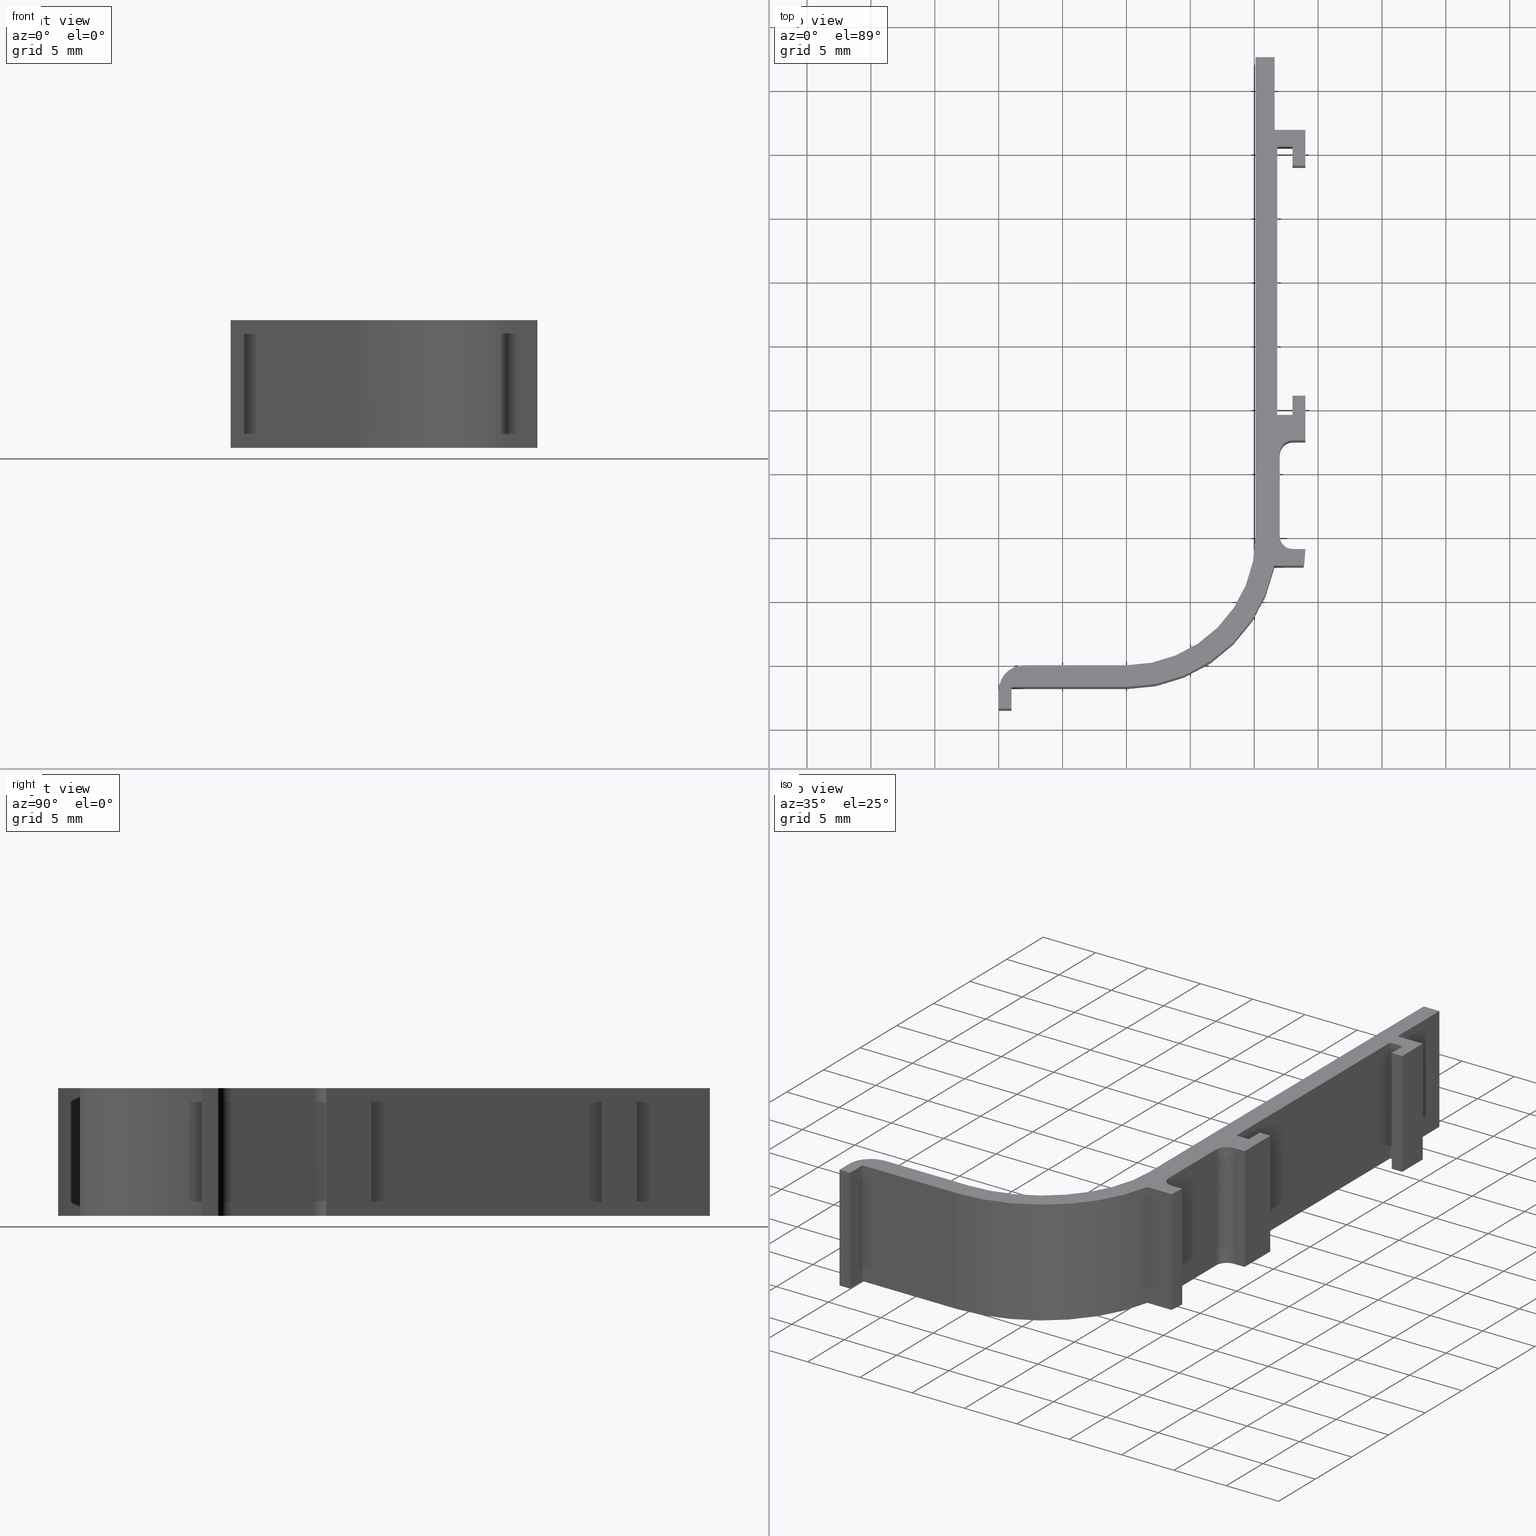
[diagram: canonical four-view strip — front | top / right | iso, engineering-drawing reading convention]
A machine part, canonical four-view strip (front | top / right | iso — engineering-drawing reading convention). The complete STEP part file that produces these views, byte-faithful:
ISO-10303-21;
HEADER;
/* Generated by software containing ST-Developer
 * from STEP Tools, Inc. (www.steptools.com) 
 */

FILE_DESCRIPTION(
/* description */ ('Griffmulde L-Form'),
/* implementation_level */ '2;1');

FILE_NAME(
/* name */ 'C:\\Users\\selema\\Desktop\\901014.stp',
/* time_stamp */ '2020-08-24T10:30:35+02:00',
/* author */ ('selema'),
/* organization */ (''),
/* preprocessor_version */ 'ST-DEVELOPER v15.6',
/* originating_system */ 'Autodesk Inventor 2015',
/* authorisation */ '');

FILE_SCHEMA (('AUTOMOTIVE_DESIGN { 1 0 10303 214 3 1 1 }'));
ENDSEC;

DATA;
#10=MECHANICAL_DESIGN_GEOMETRIC_PRESENTATION_REPRESENTATION('',(#13),#975);
#11=SHAPE_REPRESENTATION_RELATIONSHIP('SRR','None',#984,#12);
#12=ADVANCED_BREP_SHAPE_REPRESENTATION($,(#14),#974);
#13=STYLED_ITEM('',(#993),#14);
#14=MANIFOLD_SOLID_BREP('Volumenk\X\F6rper1',#599);
#15=CYLINDRICAL_SURFACE('',#609,12.);
#16=CYLINDRICAL_SURFACE('',#612,2.);
#17=CYLINDRICAL_SURFACE('',#620,1.);
#18=CYLINDRICAL_SURFACE('',#622,1.);
#19=CYLINDRICAL_SURFACE('',#624,10.1);
#20=CYLINDRICAL_SURFACE('',#639,11.8);
#21=CIRCLE('',#603,11.8);
#22=CIRCLE('',#604,12.);
#23=CIRCLE('',#605,1.);
#24=CIRCLE('',#606,1.);
#25=CIRCLE('',#607,10.1);
#26=CIRCLE('',#608,2.);
#27=CIRCLE('',#610,12.);
#28=CIRCLE('',#613,2.);
#29=CIRCLE('',#615,11.8);
#30=CIRCLE('',#616,10.1);
#31=CIRCLE('',#617,1.);
#32=CIRCLE('',#618,1.);
#33=FACE_OUTER_BOUND('',#63,.T.);
#34=FACE_OUTER_BOUND('',#64,.T.);
#35=FACE_OUTER_BOUND('',#65,.T.);
#36=FACE_OUTER_BOUND('',#66,.T.);
#37=FACE_OUTER_BOUND('',#67,.T.);
#38=FACE_OUTER_BOUND('',#68,.T.);
#39=FACE_OUTER_BOUND('',#69,.T.);
#40=FACE_OUTER_BOUND('',#70,.T.);
#41=FACE_OUTER_BOUND('',#71,.T.);
#42=FACE_OUTER_BOUND('',#72,.T.);
#43=FACE_OUTER_BOUND('',#73,.T.);
#44=FACE_OUTER_BOUND('',#74,.T.);
#45=FACE_OUTER_BOUND('',#75,.T.);
#46=FACE_OUTER_BOUND('',#76,.T.);
#47=FACE_OUTER_BOUND('',#77,.T.);
#48=FACE_OUTER_BOUND('',#78,.T.);
#49=FACE_OUTER_BOUND('',#79,.T.);
#50=FACE_OUTER_BOUND('',#80,.T.);
#51=FACE_OUTER_BOUND('',#81,.T.);
#52=FACE_OUTER_BOUND('',#82,.T.);
#53=FACE_OUTER_BOUND('',#83,.T.);
#54=FACE_OUTER_BOUND('',#84,.T.);
#55=FACE_OUTER_BOUND('',#85,.T.);
#56=FACE_OUTER_BOUND('',#86,.T.);
#57=FACE_OUTER_BOUND('',#87,.T.);
#58=FACE_OUTER_BOUND('',#88,.T.);
#59=FACE_OUTER_BOUND('',#89,.T.);
#60=FACE_OUTER_BOUND('',#90,.T.);
#61=FACE_OUTER_BOUND('',#91,.T.);
#62=FACE_OUTER_BOUND('',#92,.T.);
#63=EDGE_LOOP('',(#377,#378,#379,#380));
#64=EDGE_LOOP('',(#381,#382,#383,#384,#385,#386,#387,#388,#389,#390,#391,
#392,#393,#394,#395,#396,#397,#398,#399,#400,#401,#402,#403,#404,#405,#406,
#407,#408));
#65=EDGE_LOOP('',(#409,#410,#411,#412));
#66=EDGE_LOOP('',(#413,#414,#415,#416));
#67=EDGE_LOOP('',(#417,#418,#419,#420));
#68=EDGE_LOOP('',(#421,#422,#423,#424,#425,#426,#427,#428,#429,#430,#431,
#432,#433,#434,#435,#436,#437,#438,#439,#440,#441,#442,#443,#444,#445,#446,
#447,#448));
#69=EDGE_LOOP('',(#449,#450,#451,#452));
#70=EDGE_LOOP('',(#453,#454,#455,#456));
#71=EDGE_LOOP('',(#457,#458,#459,#460));
#72=EDGE_LOOP('',(#461,#462,#463,#464));
#73=EDGE_LOOP('',(#465,#466,#467,#468));
#74=EDGE_LOOP('',(#469,#470,#471,#472));
#75=EDGE_LOOP('',(#473,#474,#475,#476));
#76=EDGE_LOOP('',(#477,#478,#479,#480));
#77=EDGE_LOOP('',(#481,#482,#483,#484));
#78=EDGE_LOOP('',(#485,#486,#487,#488));
#79=EDGE_LOOP('',(#489,#490,#491,#492));
#80=EDGE_LOOP('',(#493,#494,#495,#496));
#81=EDGE_LOOP('',(#497,#498,#499,#500));
#82=EDGE_LOOP('',(#501,#502,#503,#504));
#83=EDGE_LOOP('',(#505,#506,#507,#508));
#84=EDGE_LOOP('',(#509,#510,#511,#512));
#85=EDGE_LOOP('',(#513,#514,#515,#516));
#86=EDGE_LOOP('',(#517,#518,#519,#520));
#87=EDGE_LOOP('',(#521,#522,#523,#524));
#88=EDGE_LOOP('',(#525,#526,#527,#528));
#89=EDGE_LOOP('',(#529,#530,#531,#532));
#90=EDGE_LOOP('',(#533,#534,#535,#536));
#91=EDGE_LOOP('',(#537,#538,#539,#540));
#92=EDGE_LOOP('',(#541,#542,#543,#544));
#93=LINE('',#805,#165);
#94=LINE('',#807,#166);
#95=LINE('',#809,#167);
#96=LINE('',#810,#168);
#97=LINE('',#817,#169);
#98=LINE('',#821,#170);
#99=LINE('',#825,#171);
#100=LINE('',#827,#172);
#101=LINE('',#829,#173);
#102=LINE('',#831,#174);
#103=LINE('',#833,#175);
#104=LINE('',#835,#176);
#105=LINE('',#837,#177);
#106=LINE('',#839,#178);
#107=LINE('',#841,#179);
#108=LINE('',#843,#180);
#109=LINE('',#845,#181);
#110=LINE('',#847,#182);
#111=LINE('',#849,#183);
#112=LINE('',#851,#184);
#113=LINE('',#855,#185);
#114=LINE('',#859,#186);
#115=LINE('',#861,#187);
#116=LINE('',#863,#188);
#117=LINE('',#864,#189);
#118=LINE('',#868,#190);
#119=LINE('',#872,#191);
#120=LINE('',#873,#192);
#121=LINE('',#874,#193);
#122=LINE('',#879,#194);
#123=LINE('',#880,#195);
#124=LINE('',#885,#196);
#125=LINE('',#887,#197);
#126=LINE('',#889,#198);
#127=LINE('',#890,#199);
#128=LINE('',#892,#200);
#129=LINE('',#896,#201);
#130=LINE('',#897,#202);
#131=LINE('',#899,#203);
#132=LINE('',#901,#204);
#133=LINE('',#903,#205);
#134=LINE('',#905,#206);
#135=LINE('',#907,#207);
#136=LINE('',#909,#208);
#137=LINE('',#911,#209);
#138=LINE('',#913,#210);
#139=LINE('',#915,#211);
#140=LINE('',#917,#212);
#141=LINE('',#919,#213);
#142=LINE('',#923,#214);
#143=LINE('',#926,#215);
#144=LINE('',#928,#216);
#145=LINE('',#930,#217);
#146=LINE('',#931,#218);
#147=LINE('',#933,#219);
#148=LINE('',#935,#220);
#149=LINE('',#937,#221);
#150=LINE('',#939,#222);
#151=LINE('',#941,#223);
#152=LINE('',#943,#224);
#153=LINE('',#946,#225);
#154=LINE('',#948,#226);
#155=LINE('',#950,#227);
#156=LINE('',#952,#228);
#157=LINE('',#954,#229);
#158=LINE('',#956,#230);
#159=LINE('',#958,#231);
#160=LINE('',#960,#232);
#161=LINE('',#962,#233);
#162=LINE('',#966,#234);
#163=LINE('',#968,#235);
#164=LINE('',#970,#236);
#165=VECTOR('',#647,2.29055492974429);
#166=VECTOR('',#648,10.);
#167=VECTOR('',#649,2.29055492974429);
#168=VECTOR('',#650,10.);
#169=VECTOR('',#657,0.989578808281794);
#170=VECTOR('',#660,6.5);
#171=VECTOR('',#663,0.999999999999999);
#172=VECTOR('',#664,3.5);
#173=VECTOR('',#665,1.);
#174=VECTOR('',#666,1.5);
#175=VECTOR('',#667,1.2);
#176=VECTOR('',#668,21.);
#177=VECTOR('',#669,1.2);
#178=VECTOR('',#670,1.49999999999999);
#179=VECTOR('',#671,1.);
#180=VECTOR('',#672,2.79999999999999);
#181=VECTOR('',#673,2.4);
#182=VECTOR('',#674,5.69999999999999);
#183=VECTOR('',#675,1.5);
#184=VECTOR('',#676,37.5);
#185=VECTOR('',#679,8.00000000000001);
#186=VECTOR('',#682,1.40000000000001);
#187=VECTOR('',#683,0.999999999999999);
#188=VECTOR('',#684,1.70000000000001);
#189=VECTOR('',#685,9.00000000000001);
#190=VECTOR('',#690,10.);
#191=VECTOR('',#693,5.69999999999999);
#192=VECTOR('',#694,10.);
#193=VECTOR('',#695,10.);
#194=VECTOR('',#700,10.);
#195=VECTOR('',#701,10.);
#196=VECTOR('',#706,9.00000000000001);
#197=VECTOR('',#707,1.70000000000001);
#198=VECTOR('',#708,0.999999999999999);
#199=VECTOR('',#709,1.40000000000001);
#200=VECTOR('',#710,8.00000000000001);
#201=VECTOR('',#713,37.5);
#202=VECTOR('',#714,1.5);
#203=VECTOR('',#715,2.4);
#204=VECTOR('',#716,2.79999999999999);
#205=VECTOR('',#717,1.);
#206=VECTOR('',#718,1.49999999999999);
#207=VECTOR('',#719,1.2);
#208=VECTOR('',#720,21.);
#209=VECTOR('',#721,1.2);
#210=VECTOR('',#722,1.5);
#211=VECTOR('',#723,1.);
#212=VECTOR('',#724,3.5);
#213=VECTOR('',#725,0.999999999999999);
#214=VECTOR('',#728,6.5);
#215=VECTOR('',#731,0.989578808281794);
#216=VECTOR('',#734,10.);
#217=VECTOR('',#737,10.);
#218=VECTOR('',#738,10.);
#219=VECTOR('',#741,10.);
#220=VECTOR('',#744,10.);
#221=VECTOR('',#747,10.);
#222=VECTOR('',#750,10.);
#223=VECTOR('',#753,10.);
#224=VECTOR('',#756,10.);
#225=VECTOR('',#761,10.);
#226=VECTOR('',#764,10.);
#227=VECTOR('',#767,10.);
#228=VECTOR('',#770,10.);
#229=VECTOR('',#773,10.);
#230=VECTOR('',#776,10.);
#231=VECTOR('',#779,10.);
#232=VECTOR('',#782,10.);
#233=VECTOR('',#785,10.);
#234=VECTOR('',#792,10.);
#235=VECTOR('',#795,10.);
#236=VECTOR('',#798,10.);
#237=VERTEX_POINT('',#803);
#238=VERTEX_POINT('',#804);
#239=VERTEX_POINT('',#806);
#240=VERTEX_POINT('',#808);
#241=VERTEX_POINT('',#812);
#242=VERTEX_POINT('',#814);
#243=VERTEX_POINT('',#816);
#244=VERTEX_POINT('',#818);
#245=VERTEX_POINT('',#820);
#246=VERTEX_POINT('',#822);
#247=VERTEX_POINT('',#824);
#248=VERTEX_POINT('',#826);
#249=VERTEX_POINT('',#828);
#250=VERTEX_POINT('',#830);
#251=VERTEX_POINT('',#832);
#252=VERTEX_POINT('',#834);
#253=VERTEX_POINT('',#836);
#254=VERTEX_POINT('',#838);
#255=VERTEX_POINT('',#840);
#256=VERTEX_POINT('',#842);
#257=VERTEX_POINT('',#844);
#258=VERTEX_POINT('',#846);
#259=VERTEX_POINT('',#848);
#260=VERTEX_POINT('',#850);
#261=VERTEX_POINT('',#852);
#262=VERTEX_POINT('',#854);
#263=VERTEX_POINT('',#856);
#264=VERTEX_POINT('',#858);
#265=VERTEX_POINT('',#860);
#266=VERTEX_POINT('',#862);
#267=VERTEX_POINT('',#866);
#268=VERTEX_POINT('',#870);
#269=VERTEX_POINT('',#871);
#270=VERTEX_POINT('',#876);
#271=VERTEX_POINT('',#877);
#272=VERTEX_POINT('',#882);
#273=VERTEX_POINT('',#884);
#274=VERTEX_POINT('',#886);
#275=VERTEX_POINT('',#888);
#276=VERTEX_POINT('',#891);
#277=VERTEX_POINT('',#893);
#278=VERTEX_POINT('',#895);
#279=VERTEX_POINT('',#898);
#280=VERTEX_POINT('',#900);
#281=VERTEX_POINT('',#902);
#282=VERTEX_POINT('',#904);
#283=VERTEX_POINT('',#906);
#284=VERTEX_POINT('',#908);
#285=VERTEX_POINT('',#910);
#286=VERTEX_POINT('',#912);
#287=VERTEX_POINT('',#914);
#288=VERTEX_POINT('',#916);
#289=VERTEX_POINT('',#918);
#290=VERTEX_POINT('',#920);
#291=VERTEX_POINT('',#922);
#292=VERTEX_POINT('',#924);
#293=EDGE_CURVE('',#237,#238,#93,.T.);
#294=EDGE_CURVE('',#239,#237,#94,.T.);
#295=EDGE_CURVE('',#240,#239,#95,.T.);
#296=EDGE_CURVE('',#240,#238,#96,.T.);
#297=EDGE_CURVE('',#240,#241,#21,.T.);
#298=EDGE_CURVE('',#242,#239,#22,.T.);
#299=EDGE_CURVE('',#243,#242,#97,.T.);
#300=EDGE_CURVE('',#244,#243,#23,.T.);
#301=EDGE_CURVE('',#245,#244,#98,.T.);
#302=EDGE_CURVE('',#246,#245,#24,.T.);
#303=EDGE_CURVE('',#247,#246,#99,.T.);
#304=EDGE_CURVE('',#248,#247,#100,.T.);
#305=EDGE_CURVE('',#249,#248,#101,.T.);
#306=EDGE_CURVE('',#250,#249,#102,.T.);
#307=EDGE_CURVE('',#251,#250,#103,.T.);
#308=EDGE_CURVE('',#252,#251,#104,.T.);
#309=EDGE_CURVE('',#253,#252,#105,.T.);
#310=EDGE_CURVE('',#254,#253,#106,.T.);
#311=EDGE_CURVE('',#255,#254,#107,.T.);
#312=EDGE_CURVE('',#256,#255,#108,.T.);
#313=EDGE_CURVE('',#257,#256,#109,.T.);
#314=EDGE_CURVE('',#257,#258,#110,.T.);
#315=EDGE_CURVE('',#259,#258,#111,.T.);
#316=EDGE_CURVE('',#259,#260,#112,.T.);
#317=EDGE_CURVE('',#260,#261,#25,.T.);
#318=EDGE_CURVE('',#261,#262,#113,.T.);
#319=EDGE_CURVE('',#263,#262,#26,.T.);
#320=EDGE_CURVE('',#264,#263,#114,.T.);
#321=EDGE_CURVE('',#265,#264,#115,.T.);
#322=EDGE_CURVE('',#266,#265,#116,.T.);
#323=EDGE_CURVE('',#241,#266,#117,.T.);
#324=EDGE_CURVE('',#237,#267,#27,.T.);
#325=EDGE_CURVE('',#267,#242,#118,.T.);
#326=EDGE_CURVE('',#268,#269,#119,.T.);
#327=EDGE_CURVE('',#258,#268,#120,.T.);
#328=EDGE_CURVE('',#257,#269,#121,.T.);
#329=EDGE_CURVE('',#270,#271,#28,.T.);
#330=EDGE_CURVE('',#271,#263,#122,.T.);
#331=EDGE_CURVE('',#262,#270,#123,.T.);
#332=EDGE_CURVE('',#238,#272,#29,.T.);
#333=EDGE_CURVE('',#273,#272,#124,.T.);
#334=EDGE_CURVE('',#274,#273,#125,.T.);
#335=EDGE_CURVE('',#275,#274,#126,.T.);
#336=EDGE_CURVE('',#271,#275,#127,.T.);
#337=EDGE_CURVE('',#270,#276,#128,.T.);
#338=EDGE_CURVE('',#276,#277,#30,.T.);
#339=EDGE_CURVE('',#277,#278,#129,.T.);
#340=EDGE_CURVE('',#268,#278,#130,.T.);
#341=EDGE_CURVE('',#269,#279,#131,.T.);
#342=EDGE_CURVE('',#280,#279,#132,.T.);
#343=EDGE_CURVE('',#281,#280,#133,.T.);
#344=EDGE_CURVE('',#282,#281,#134,.T.);
#345=EDGE_CURVE('',#283,#282,#135,.T.);
#346=EDGE_CURVE('',#284,#283,#136,.T.);
#347=EDGE_CURVE('',#285,#284,#137,.T.);
#348=EDGE_CURVE('',#286,#285,#138,.T.);
#349=EDGE_CURVE('',#287,#286,#139,.T.);
#350=EDGE_CURVE('',#288,#287,#140,.T.);
#351=EDGE_CURVE('',#289,#288,#141,.T.);
#352=EDGE_CURVE('',#290,#289,#31,.T.);
#353=EDGE_CURVE('',#291,#290,#142,.T.);
#354=EDGE_CURVE('',#292,#291,#32,.T.);
#355=EDGE_CURVE('',#267,#292,#143,.T.);
#356=EDGE_CURVE('',#261,#276,#144,.T.);
#357=EDGE_CURVE('',#291,#244,#145,.T.);
#358=EDGE_CURVE('',#243,#292,#146,.T.);
#359=EDGE_CURVE('',#245,#290,#147,.T.);
#360=EDGE_CURVE('',#289,#246,#148,.T.);
#361=EDGE_CURVE('',#288,#247,#149,.T.);
#362=EDGE_CURVE('',#260,#277,#150,.T.);
#363=EDGE_CURVE('',#278,#259,#151,.T.);
#364=EDGE_CURVE('',#275,#264,#152,.T.);
#365=EDGE_CURVE('',#279,#256,#153,.T.);
#366=EDGE_CURVE('',#280,#255,#154,.T.);
#367=EDGE_CURVE('',#281,#254,#155,.T.);
#368=EDGE_CURVE('',#282,#253,#156,.T.);
#369=EDGE_CURVE('',#283,#252,#157,.T.);
#370=EDGE_CURVE('',#284,#251,#158,.T.);
#371=EDGE_CURVE('',#285,#250,#159,.T.);
#372=EDGE_CURVE('',#286,#249,#160,.T.);
#373=EDGE_CURVE('',#287,#248,#161,.T.);
#374=EDGE_CURVE('',#272,#241,#162,.T.);
#375=EDGE_CURVE('',#273,#266,#163,.T.);
#376=EDGE_CURVE('',#274,#265,#164,.T.);
#377=ORIENTED_EDGE('',*,*,#293,.F.);
#378=ORIENTED_EDGE('',*,*,#294,.F.);
#379=ORIENTED_EDGE('',*,*,#295,.F.);
#380=ORIENTED_EDGE('',*,*,#296,.T.);
#381=ORIENTED_EDGE('',*,*,#297,.F.);
#382=ORIENTED_EDGE('',*,*,#295,.T.);
#383=ORIENTED_EDGE('',*,*,#298,.F.);
#384=ORIENTED_EDGE('',*,*,#299,.F.);
#385=ORIENTED_EDGE('',*,*,#300,.F.);
#386=ORIENTED_EDGE('',*,*,#301,.F.);
#387=ORIENTED_EDGE('',*,*,#302,.F.);
#388=ORIENTED_EDGE('',*,*,#303,.F.);
#389=ORIENTED_EDGE('',*,*,#304,.F.);
#390=ORIENTED_EDGE('',*,*,#305,.F.);
#391=ORIENTED_EDGE('',*,*,#306,.F.);
#392=ORIENTED_EDGE('',*,*,#307,.F.);
#393=ORIENTED_EDGE('',*,*,#308,.F.);
#394=ORIENTED_EDGE('',*,*,#309,.F.);
#395=ORIENTED_EDGE('',*,*,#310,.F.);
#396=ORIENTED_EDGE('',*,*,#311,.F.);
#397=ORIENTED_EDGE('',*,*,#312,.F.);
#398=ORIENTED_EDGE('',*,*,#313,.F.);
#399=ORIENTED_EDGE('',*,*,#314,.T.);
#400=ORIENTED_EDGE('',*,*,#315,.F.);
#401=ORIENTED_EDGE('',*,*,#316,.T.);
#402=ORIENTED_EDGE('',*,*,#317,.T.);
#403=ORIENTED_EDGE('',*,*,#318,.T.);
#404=ORIENTED_EDGE('',*,*,#319,.F.);
#405=ORIENTED_EDGE('',*,*,#320,.F.);
#406=ORIENTED_EDGE('',*,*,#321,.F.);
#407=ORIENTED_EDGE('',*,*,#322,.F.);
#408=ORIENTED_EDGE('',*,*,#323,.F.);
#409=ORIENTED_EDGE('',*,*,#294,.T.);
#410=ORIENTED_EDGE('',*,*,#324,.T.);
#411=ORIENTED_EDGE('',*,*,#325,.T.);
#412=ORIENTED_EDGE('',*,*,#298,.T.);
#413=ORIENTED_EDGE('',*,*,#326,.F.);
#414=ORIENTED_EDGE('',*,*,#327,.F.);
#415=ORIENTED_EDGE('',*,*,#314,.F.);
#416=ORIENTED_EDGE('',*,*,#328,.T.);
#417=ORIENTED_EDGE('',*,*,#329,.T.);
#418=ORIENTED_EDGE('',*,*,#330,.T.);
#419=ORIENTED_EDGE('',*,*,#319,.T.);
#420=ORIENTED_EDGE('',*,*,#331,.T.);
#421=ORIENTED_EDGE('',*,*,#332,.T.);
#422=ORIENTED_EDGE('',*,*,#333,.F.);
#423=ORIENTED_EDGE('',*,*,#334,.F.);
#424=ORIENTED_EDGE('',*,*,#335,.F.);
#425=ORIENTED_EDGE('',*,*,#336,.F.);
#426=ORIENTED_EDGE('',*,*,#329,.F.);
#427=ORIENTED_EDGE('',*,*,#337,.T.);
#428=ORIENTED_EDGE('',*,*,#338,.T.);
#429=ORIENTED_EDGE('',*,*,#339,.T.);
#430=ORIENTED_EDGE('',*,*,#340,.F.);
#431=ORIENTED_EDGE('',*,*,#326,.T.);
#432=ORIENTED_EDGE('',*,*,#341,.T.);
#433=ORIENTED_EDGE('',*,*,#342,.F.);
#434=ORIENTED_EDGE('',*,*,#343,.F.);
#435=ORIENTED_EDGE('',*,*,#344,.F.);
#436=ORIENTED_EDGE('',*,*,#345,.F.);
#437=ORIENTED_EDGE('',*,*,#346,.F.);
#438=ORIENTED_EDGE('',*,*,#347,.F.);
#439=ORIENTED_EDGE('',*,*,#348,.F.);
#440=ORIENTED_EDGE('',*,*,#349,.F.);
#441=ORIENTED_EDGE('',*,*,#350,.F.);
#442=ORIENTED_EDGE('',*,*,#351,.F.);
#443=ORIENTED_EDGE('',*,*,#352,.F.);
#444=ORIENTED_EDGE('',*,*,#353,.F.);
#445=ORIENTED_EDGE('',*,*,#354,.F.);
#446=ORIENTED_EDGE('',*,*,#355,.F.);
#447=ORIENTED_EDGE('',*,*,#324,.F.);
#448=ORIENTED_EDGE('',*,*,#293,.T.);
#449=ORIENTED_EDGE('',*,*,#331,.F.);
#450=ORIENTED_EDGE('',*,*,#318,.F.);
#451=ORIENTED_EDGE('',*,*,#356,.T.);
#452=ORIENTED_EDGE('',*,*,#337,.F.);
#453=ORIENTED_EDGE('',*,*,#354,.T.);
#454=ORIENTED_EDGE('',*,*,#357,.T.);
#455=ORIENTED_EDGE('',*,*,#300,.T.);
#456=ORIENTED_EDGE('',*,*,#358,.T.);
#457=ORIENTED_EDGE('',*,*,#357,.F.);
#458=ORIENTED_EDGE('',*,*,#353,.T.);
#459=ORIENTED_EDGE('',*,*,#359,.F.);
#460=ORIENTED_EDGE('',*,*,#301,.T.);
#461=ORIENTED_EDGE('',*,*,#352,.T.);
#462=ORIENTED_EDGE('',*,*,#360,.T.);
#463=ORIENTED_EDGE('',*,*,#302,.T.);
#464=ORIENTED_EDGE('',*,*,#359,.T.);
#465=ORIENTED_EDGE('',*,*,#360,.F.);
#466=ORIENTED_EDGE('',*,*,#351,.T.);
#467=ORIENTED_EDGE('',*,*,#361,.T.);
#468=ORIENTED_EDGE('',*,*,#303,.T.);
#469=ORIENTED_EDGE('',*,*,#338,.F.);
#470=ORIENTED_EDGE('',*,*,#356,.F.);
#471=ORIENTED_EDGE('',*,*,#317,.F.);
#472=ORIENTED_EDGE('',*,*,#362,.T.);
#473=ORIENTED_EDGE('',*,*,#339,.F.);
#474=ORIENTED_EDGE('',*,*,#362,.F.);
#475=ORIENTED_EDGE('',*,*,#316,.F.);
#476=ORIENTED_EDGE('',*,*,#363,.F.);
#477=ORIENTED_EDGE('',*,*,#330,.F.);
#478=ORIENTED_EDGE('',*,*,#336,.T.);
#479=ORIENTED_EDGE('',*,*,#364,.T.);
#480=ORIENTED_EDGE('',*,*,#320,.T.);
#481=ORIENTED_EDGE('',*,*,#327,.T.);
#482=ORIENTED_EDGE('',*,*,#340,.T.);
#483=ORIENTED_EDGE('',*,*,#363,.T.);
#484=ORIENTED_EDGE('',*,*,#315,.T.);
#485=ORIENTED_EDGE('',*,*,#313,.T.);
#486=ORIENTED_EDGE('',*,*,#365,.F.);
#487=ORIENTED_EDGE('',*,*,#341,.F.);
#488=ORIENTED_EDGE('',*,*,#328,.F.);
#489=ORIENTED_EDGE('',*,*,#312,.T.);
#490=ORIENTED_EDGE('',*,*,#366,.F.);
#491=ORIENTED_EDGE('',*,*,#342,.T.);
#492=ORIENTED_EDGE('',*,*,#365,.T.);
#493=ORIENTED_EDGE('',*,*,#311,.T.);
#494=ORIENTED_EDGE('',*,*,#367,.F.);
#495=ORIENTED_EDGE('',*,*,#343,.T.);
#496=ORIENTED_EDGE('',*,*,#366,.T.);
#497=ORIENTED_EDGE('',*,*,#310,.T.);
#498=ORIENTED_EDGE('',*,*,#368,.F.);
#499=ORIENTED_EDGE('',*,*,#344,.T.);
#500=ORIENTED_EDGE('',*,*,#367,.T.);
#501=ORIENTED_EDGE('',*,*,#309,.T.);
#502=ORIENTED_EDGE('',*,*,#369,.F.);
#503=ORIENTED_EDGE('',*,*,#345,.T.);
#504=ORIENTED_EDGE('',*,*,#368,.T.);
#505=ORIENTED_EDGE('',*,*,#308,.T.);
#506=ORIENTED_EDGE('',*,*,#370,.F.);
#507=ORIENTED_EDGE('',*,*,#346,.T.);
#508=ORIENTED_EDGE('',*,*,#369,.T.);
#509=ORIENTED_EDGE('',*,*,#307,.T.);
#510=ORIENTED_EDGE('',*,*,#371,.F.);
#511=ORIENTED_EDGE('',*,*,#347,.T.);
#512=ORIENTED_EDGE('',*,*,#370,.T.);
#513=ORIENTED_EDGE('',*,*,#306,.T.);
#514=ORIENTED_EDGE('',*,*,#372,.F.);
#515=ORIENTED_EDGE('',*,*,#348,.T.);
#516=ORIENTED_EDGE('',*,*,#371,.T.);
#517=ORIENTED_EDGE('',*,*,#305,.T.);
#518=ORIENTED_EDGE('',*,*,#373,.F.);
#519=ORIENTED_EDGE('',*,*,#349,.T.);
#520=ORIENTED_EDGE('',*,*,#372,.T.);
#521=ORIENTED_EDGE('',*,*,#304,.T.);
#522=ORIENTED_EDGE('',*,*,#361,.F.);
#523=ORIENTED_EDGE('',*,*,#350,.T.);
#524=ORIENTED_EDGE('',*,*,#373,.T.);
#525=ORIENTED_EDGE('',*,*,#358,.F.);
#526=ORIENTED_EDGE('',*,*,#299,.T.);
#527=ORIENTED_EDGE('',*,*,#325,.F.);
#528=ORIENTED_EDGE('',*,*,#355,.T.);
#529=ORIENTED_EDGE('',*,*,#297,.T.);
#530=ORIENTED_EDGE('',*,*,#374,.F.);
#531=ORIENTED_EDGE('',*,*,#332,.F.);
#532=ORIENTED_EDGE('',*,*,#296,.F.);
#533=ORIENTED_EDGE('',*,*,#323,.T.);
#534=ORIENTED_EDGE('',*,*,#375,.F.);
#535=ORIENTED_EDGE('',*,*,#333,.T.);
#536=ORIENTED_EDGE('',*,*,#374,.T.);
#537=ORIENTED_EDGE('',*,*,#322,.T.);
#538=ORIENTED_EDGE('',*,*,#376,.F.);
#539=ORIENTED_EDGE('',*,*,#334,.T.);
#540=ORIENTED_EDGE('',*,*,#375,.T.);
#541=ORIENTED_EDGE('',*,*,#321,.T.);
#542=ORIENTED_EDGE('',*,*,#364,.F.);
#543=ORIENTED_EDGE('',*,*,#335,.T.);
#544=ORIENTED_EDGE('',*,*,#376,.T.);
#545=PLANE('',#601);
#546=PLANE('',#602);
#547=PLANE('',#611);
#548=PLANE('',#614);
#549=PLANE('',#619);
#550=PLANE('',#621);
#551=PLANE('',#623);
#552=PLANE('',#625);
#553=PLANE('',#626);
#554=PLANE('',#627);
#555=PLANE('',#628);
#556=PLANE('',#629);
#557=PLANE('',#630);
#558=PLANE('',#631);
#559=PLANE('',#632);
#560=PLANE('',#633);
#561=PLANE('',#634);
#562=PLANE('',#635);
#563=PLANE('',#636);
#564=PLANE('',#637);
#565=PLANE('',#638);
#566=PLANE('',#640);
#567=PLANE('',#641);
#568=PLANE('',#642);
#569=ADVANCED_FACE('',(#33),#545,.F.);
#570=ADVANCED_FACE('',(#34),#546,.T.);
#571=ADVANCED_FACE('',(#35),#15,.T.);
#572=ADVANCED_FACE('',(#36),#547,.F.);
#573=ADVANCED_FACE('',(#37),#16,.T.);
#574=ADVANCED_FACE('',(#38),#548,.F.);
#575=ADVANCED_FACE('',(#39),#549,.F.);
#576=ADVANCED_FACE('',(#40),#17,.F.);
#577=ADVANCED_FACE('',(#41),#550,.T.);
#578=ADVANCED_FACE('',(#42),#18,.F.);
#579=ADVANCED_FACE('',(#43),#551,.T.);
#580=ADVANCED_FACE('',(#44),#19,.F.);
#581=ADVANCED_FACE('',(#45),#552,.F.);
#582=ADVANCED_FACE('',(#46),#553,.T.);
#583=ADVANCED_FACE('',(#47),#554,.T.);
#584=ADVANCED_FACE('',(#48),#555,.T.);
#585=ADVANCED_FACE('',(#49),#556,.T.);
#586=ADVANCED_FACE('',(#50),#557,.T.);
#587=ADVANCED_FACE('',(#51),#558,.T.);
#588=ADVANCED_FACE('',(#52),#559,.T.);
#589=ADVANCED_FACE('',(#53),#560,.T.);
#590=ADVANCED_FACE('',(#54),#561,.T.);
#591=ADVANCED_FACE('',(#55),#562,.T.);
#592=ADVANCED_FACE('',(#56),#563,.T.);
#593=ADVANCED_FACE('',(#57),#564,.T.);
#594=ADVANCED_FACE('',(#58),#565,.T.);
#595=ADVANCED_FACE('',(#59),#20,.T.);
#596=ADVANCED_FACE('',(#60),#566,.T.);
#597=ADVANCED_FACE('',(#61),#567,.T.);
#598=ADVANCED_FACE('',(#62),#568,.T.);
#599=CLOSED_SHELL('',(#569,#570,#571,#572,#573,#574,#575,#576,#577,#578,
#579,#580,#581,#582,#583,#584,#585,#586,#587,#588,#589,#590,#591,#592,#593,
#594,#595,#596,#597,#598));
#600=AXIS2_PLACEMENT_3D('placement',#801,#643,#644);
#601=AXIS2_PLACEMENT_3D('',#802,#645,#646);
#602=AXIS2_PLACEMENT_3D('',#811,#651,#652);
#603=AXIS2_PLACEMENT_3D('',#813,#653,#654);
#604=AXIS2_PLACEMENT_3D('',#815,#655,#656);
#605=AXIS2_PLACEMENT_3D('',#819,#658,#659);
#606=AXIS2_PLACEMENT_3D('',#823,#661,#662);
#607=AXIS2_PLACEMENT_3D('',#853,#677,#678);
#608=AXIS2_PLACEMENT_3D('',#857,#680,#681);
#609=AXIS2_PLACEMENT_3D('',#865,#686,#687);
#610=AXIS2_PLACEMENT_3D('',#867,#688,#689);
#611=AXIS2_PLACEMENT_3D('',#869,#691,#692);
#612=AXIS2_PLACEMENT_3D('',#875,#696,#697);
#613=AXIS2_PLACEMENT_3D('',#878,#698,#699);
#614=AXIS2_PLACEMENT_3D('',#881,#702,#703);
#615=AXIS2_PLACEMENT_3D('',#883,#704,#705);
#616=AXIS2_PLACEMENT_3D('',#894,#711,#712);
#617=AXIS2_PLACEMENT_3D('',#921,#726,#727);
#618=AXIS2_PLACEMENT_3D('',#925,#729,#730);
#619=AXIS2_PLACEMENT_3D('',#927,#732,#733);
#620=AXIS2_PLACEMENT_3D('',#929,#735,#736);
#621=AXIS2_PLACEMENT_3D('',#932,#739,#740);
#622=AXIS2_PLACEMENT_3D('',#934,#742,#743);
#623=AXIS2_PLACEMENT_3D('',#936,#745,#746);
#624=AXIS2_PLACEMENT_3D('',#938,#748,#749);
#625=AXIS2_PLACEMENT_3D('',#940,#751,#752);
#626=AXIS2_PLACEMENT_3D('',#942,#754,#755);
#627=AXIS2_PLACEMENT_3D('',#944,#757,#758);
#628=AXIS2_PLACEMENT_3D('',#945,#759,#760);
#629=AXIS2_PLACEMENT_3D('',#947,#762,#763);
#630=AXIS2_PLACEMENT_3D('',#949,#765,#766);
#631=AXIS2_PLACEMENT_3D('',#951,#768,#769);
#632=AXIS2_PLACEMENT_3D('',#953,#771,#772);
#633=AXIS2_PLACEMENT_3D('',#955,#774,#775);
#634=AXIS2_PLACEMENT_3D('',#957,#777,#778);
#635=AXIS2_PLACEMENT_3D('',#959,#780,#781);
#636=AXIS2_PLACEMENT_3D('',#961,#783,#784);
#637=AXIS2_PLACEMENT_3D('',#963,#786,#787);
#638=AXIS2_PLACEMENT_3D('',#964,#788,#789);
#639=AXIS2_PLACEMENT_3D('',#965,#790,#791);
#640=AXIS2_PLACEMENT_3D('',#967,#793,#794);
#641=AXIS2_PLACEMENT_3D('',#969,#796,#797);
#642=AXIS2_PLACEMENT_3D('',#971,#799,#800);
#643=DIRECTION('axis',(0.,0.,1.));
#644=DIRECTION('refdir',(1.,0.,0.));
#645=DIRECTION('center_axis',(-9.69392185455338E-16,1.,0.));
#646=DIRECTION('ref_axis',(0.,0.,1.));
#647=DIRECTION('',(-1.,-9.69392185455338E-16,0.));
#648=DIRECTION('',(0.,0.,-1.));
#649=DIRECTION('',(1.,9.69392185455338E-16,0.));
#650=DIRECTION('',(0.,0.,-1.));
#651=DIRECTION('center_axis',(0.,0.,1.));
#652=DIRECTION('ref_axis',(1.,0.,0.));
#653=DIRECTION('center_axis',(0.,0.,-1.));
#654=DIRECTION('ref_axis',(1.88173394004264E-16,-1.,0.));
#655=DIRECTION('center_axis',(0.,0.,-1.));
#656=DIRECTION('ref_axis',(0.98601329718327,-0.166666666666664,0.));
#657=DIRECTION('',(1.,1.11603824890349E-15,0.));
#658=DIRECTION('center_axis',(0.,0.,1.));
#659=DIRECTION('ref_axis',(-0.707106781186547,-0.707106781186548,0.));
#660=DIRECTION('',(4.89804275569922E-16,-1.,0.));
#661=DIRECTION('center_axis',(0.,0.,1.));
#662=DIRECTION('ref_axis',(-0.707106781186547,0.707106781186548,0.));
#663=DIRECTION('',(-1.,0.,0.));
#664=DIRECTION('',(3.1720657846433E-16,-1.,0.));
#665=DIRECTION('',(1.,0.,0.));
#666=DIRECTION('',(-1.11022302462515E-15,1.,0.));
#667=DIRECTION('',(1.,0.,0.));
#668=DIRECTION('',(5.55111512312578E-16,-1.,0.));
#669=DIRECTION('',(-1.,0.,0.));
#670=DIRECTION('',(0.,1.,0.));
#671=DIRECTION('',(-1.,0.,0.));
#672=DIRECTION('',(-3.96508223080414E-15,-1.,0.));
#673=DIRECTION('',(1.,0.,0.));
#674=DIRECTION('',(-1.94775969232484E-16,1.,0.));
#675=DIRECTION('',(1.,0.,0.));
#676=DIRECTION('',(9.48315500200654E-17,-1.,0.));
#677=DIRECTION('center_axis',(0.,0.,-1.));
#678=DIRECTION('ref_axis',(-3.29769215235195E-16,1.,0.));
#679=DIRECTION('',(-1.,-3.12250225675825E-16,0.));
#680=DIRECTION('center_axis',(0.,0.,-1.));
#681=DIRECTION('ref_axis',(-0.707106781186548,0.707106781186547,0.));
#682=DIRECTION('',(0.,1.,0.));
#683=DIRECTION('',(-1.,0.,0.));
#684=DIRECTION('',(0.,-1.,0.));
#685=DIRECTION('',(-1.,-8.67361737988401E-17,0.));
#686=DIRECTION('center_axis',(0.,0.,1.));
#687=DIRECTION('ref_axis',(0.98601329718327,-0.166666666666664,0.));
#688=DIRECTION('center_axis',(0.,0.,1.));
#689=DIRECTION('ref_axis',(0.98601329718327,-0.166666666666664,0.));
#690=DIRECTION('',(0.,0.,1.));
#691=DIRECTION('center_axis',(-1.,-1.94775969232484E-16,0.));
#692=DIRECTION('ref_axis',(0.,0.,1.));
#693=DIRECTION('',(1.94775969232484E-16,-1.,0.));
#694=DIRECTION('',(0.,0.,-1.));
#695=DIRECTION('',(0.,0.,-1.));
#696=DIRECTION('center_axis',(0.,0.,-1.));
#697=DIRECTION('ref_axis',(-0.707106781186548,0.707106781186547,0.));
#698=DIRECTION('center_axis',(0.,0.,1.));
#699=DIRECTION('ref_axis',(-0.707106781186548,0.707106781186547,0.));
#700=DIRECTION('',(0.,0.,1.));
#701=DIRECTION('',(0.,0.,-1.));
#702=DIRECTION('center_axis',(0.,0.,1.));
#703=DIRECTION('ref_axis',(1.,0.,0.));
#704=DIRECTION('center_axis',(0.,0.,-1.));
#705=DIRECTION('ref_axis',(-0.97729907046917,0.211864406779659,0.));
#706=DIRECTION('',(1.,0.,0.));
#707=DIRECTION('',(0.,1.,0.));
#708=DIRECTION('',(1.,0.,0.));
#709=DIRECTION('',(0.,-1.,0.));
#710=DIRECTION('',(1.,3.12250225675825E-16,0.));
#711=DIRECTION('center_axis',(0.,0.,1.));
#712=DIRECTION('ref_axis',(-3.29769215235195E-16,1.,0.));
#713=DIRECTION('',(-9.48315500200654E-17,1.,0.));
#714=DIRECTION('',(-1.,0.,0.));
#715=DIRECTION('',(1.,0.,0.));
#716=DIRECTION('',(3.96508223080414E-15,1.,0.));
#717=DIRECTION('',(1.,0.,0.));
#718=DIRECTION('',(0.,-1.,0.));
#719=DIRECTION('',(1.,0.,0.));
#720=DIRECTION('',(-5.55111512312578E-16,1.,0.));
#721=DIRECTION('',(-1.,0.,0.));
#722=DIRECTION('',(1.11022302462515E-15,-1.,0.));
#723=DIRECTION('',(-1.,0.,0.));
#724=DIRECTION('',(-3.1720657846433E-16,1.,0.));
#725=DIRECTION('',(1.,0.,0.));
#726=DIRECTION('center_axis',(0.,0.,-1.));
#727=DIRECTION('ref_axis',(-0.707106781186547,0.707106781186548,0.));
#728=DIRECTION('',(-4.89804275569922E-16,1.,0.));
#729=DIRECTION('center_axis',(0.,0.,-1.));
#730=DIRECTION('ref_axis',(-0.707106781186547,-0.707106781186548,0.));
#731=DIRECTION('',(-1.,-1.11603824890349E-15,0.));
#732=DIRECTION('center_axis',(3.12250225675825E-16,-1.,0.));
#733=DIRECTION('ref_axis',(0.,0.,-1.));
#734=DIRECTION('',(0.,0.,-1.));
#735=DIRECTION('center_axis',(0.,0.,1.));
#736=DIRECTION('ref_axis',(-0.707106781186547,-0.707106781186548,0.));
#737=DIRECTION('',(0.,0.,1.));
#738=DIRECTION('',(0.,0.,-1.));
#739=DIRECTION('center_axis',(1.,4.89804275569922E-16,0.));
#740=DIRECTION('ref_axis',(0.,0.,-1.));
#741=DIRECTION('',(0.,0.,-1.));
#742=DIRECTION('center_axis',(0.,0.,1.));
#743=DIRECTION('ref_axis',(-0.707106781186547,0.707106781186548,0.));
#744=DIRECTION('',(0.,0.,1.));
#745=DIRECTION('center_axis',(0.,-1.,0.));
#746=DIRECTION('ref_axis',(0.,0.,-1.));
#747=DIRECTION('',(0.,0.,1.));
#748=DIRECTION('center_axis',(0.,0.,-1.));
#749=DIRECTION('ref_axis',(-3.29769215235195E-16,1.,0.));
#750=DIRECTION('',(0.,0.,-1.));
#751=DIRECTION('center_axis',(1.,9.48315500200654E-17,0.));
#752=DIRECTION('ref_axis',(0.,0.,-1.));
#753=DIRECTION('',(0.,0.,1.));
#754=DIRECTION('center_axis',(-1.,0.,0.));
#755=DIRECTION('ref_axis',(0.,0.,1.));
#756=DIRECTION('',(0.,0.,1.));
#757=DIRECTION('center_axis',(0.,1.,0.));
#758=DIRECTION('ref_axis',(0.,0.,1.));
#759=DIRECTION('center_axis',(0.,1.,0.));
#760=DIRECTION('ref_axis',(0.,0.,1.));
#761=DIRECTION('',(0.,0.,1.));
#762=DIRECTION('center_axis',(1.,-3.96508223080414E-15,0.));
#763=DIRECTION('ref_axis',(0.,0.,-1.));
#764=DIRECTION('',(0.,0.,1.));
#765=DIRECTION('center_axis',(0.,-1.,0.));
#766=DIRECTION('ref_axis',(0.,0.,-1.));
#767=DIRECTION('',(0.,0.,1.));
#768=DIRECTION('center_axis',(-1.,0.,0.));
#769=DIRECTION('ref_axis',(0.,0.,1.));
#770=DIRECTION('',(0.,0.,1.));
#771=DIRECTION('center_axis',(0.,-1.,0.));
#772=DIRECTION('ref_axis',(0.,0.,-1.));
#773=DIRECTION('',(0.,0.,1.));
#774=DIRECTION('center_axis',(1.,5.55111512312578E-16,0.));
#775=DIRECTION('ref_axis',(0.,0.,-1.));
#776=DIRECTION('',(0.,0.,1.));
#777=DIRECTION('center_axis',(0.,1.,0.));
#778=DIRECTION('ref_axis',(0.,0.,1.));
#779=DIRECTION('',(0.,0.,1.));
#780=DIRECTION('center_axis',(-1.,-1.11022302462515E-15,0.));
#781=DIRECTION('ref_axis',(0.,0.,1.));
#782=DIRECTION('',(0.,0.,1.));
#783=DIRECTION('center_axis',(0.,1.,0.));
#784=DIRECTION('ref_axis',(0.,0.,1.));
#785=DIRECTION('',(0.,0.,1.));
#786=DIRECTION('center_axis',(1.,3.1720657846433E-16,0.));
#787=DIRECTION('ref_axis',(0.,0.,-1.));
#788=DIRECTION('center_axis',(-1.11603824890349E-15,1.,0.));
#789=DIRECTION('ref_axis',(0.,0.,1.));
#790=DIRECTION('center_axis',(0.,0.,1.));
#791=DIRECTION('ref_axis',(1.88173394004264E-16,-1.,0.));
#792=DIRECTION('',(0.,0.,1.));
#793=DIRECTION('center_axis',(8.67361737988401E-17,-1.,0.));
#794=DIRECTION('ref_axis',(0.,0.,-1.));
#795=DIRECTION('',(0.,0.,1.));
#796=DIRECTION('center_axis',(1.,0.,0.));
#797=DIRECTION('ref_axis',(0.,0.,-1.));
#798=DIRECTION('',(0.,0.,1.));
#799=DIRECTION('center_axis',(0.,-1.,0.));
#800=DIRECTION('ref_axis',(0.,0.,-1.));
#801=CARTESIAN_POINT('',(0.,0.,0.));
#802=CARTESIAN_POINT('Origin',(3.86423195997113,7.70000000000003,5.));
#803=CARTESIAN_POINT('',(3.86423195997113,7.70000000000003,-5.));
#804=CARTESIAN_POINT('',(1.57367703022684,7.70000000000002,-5.));
#805=CARTESIAN_POINT('',(0.745043912533374,7.70000000000002,-5.));
#806=CARTESIAN_POINT('',(3.86423195997113,7.70000000000003,5.));
#807=CARTESIAN_POINT('',(3.86423195997112,7.70000000000003,0.));
#808=CARTESIAN_POINT('',(1.57367703022684,7.70000000000002,5.));
#809=CARTESIAN_POINT('',(0.745043912533373,7.70000000000002,5.));
#810=CARTESIAN_POINT('',(1.57367703022684,7.70000000000002,5.));
#811=CARTESIAN_POINT('Origin',(-2.37414413490439,17.995184161072,5.));
#812=CARTESIAN_POINT('',(-9.99999999999999,-1.8,5.));
#813=CARTESIAN_POINT('Origin',(-9.99999999999999,10.,5.));
#814=CARTESIAN_POINT('',(3.9895788082818,9.00000000000003,5.));
#815=CARTESIAN_POINT('Origin',(-8.,9.5,5.));
#816=CARTESIAN_POINT('',(3.00000000000001,9.00000000000003,5.));
#817=CARTESIAN_POINT('',(3.9895788082818,9.00000000000003,5.));
#818=CARTESIAN_POINT('',(2.00000000000001,10.,5.));
#819=CARTESIAN_POINT('Origin',(3.00000000000001,10.,5.));
#820=CARTESIAN_POINT('',(2.,16.5,5.));
#821=CARTESIAN_POINT('',(2.00000000000001,9.00000000000003,5.));
#822=CARTESIAN_POINT('',(3.,17.5,5.));
#823=CARTESIAN_POINT('Origin',(3.,16.5,5.));
#824=CARTESIAN_POINT('',(4.,17.5,5.));
#825=CARTESIAN_POINT('',(2.,17.5,5.));
#826=CARTESIAN_POINT('',(4.,21.,5.));
#827=CARTESIAN_POINT('',(4.,17.5,5.));
#828=CARTESIAN_POINT('',(3.,21.,5.));
#829=CARTESIAN_POINT('',(4.,21.,5.));
#830=CARTESIAN_POINT('',(3.,19.5,5.));
#831=CARTESIAN_POINT('',(3.,21.,5.));
#832=CARTESIAN_POINT('',(1.8,19.5,5.));
#833=CARTESIAN_POINT('',(3.,19.5,5.));
#834=CARTESIAN_POINT('',(1.79999999999999,40.5,5.));
#835=CARTESIAN_POINT('',(1.8,19.5,5.));
#836=CARTESIAN_POINT('',(2.99999999999999,40.5,5.));
#837=CARTESIAN_POINT('',(1.79999999999999,40.5,5.));
#838=CARTESIAN_POINT('',(2.99999999999999,39.,5.));
#839=CARTESIAN_POINT('',(2.99999999999999,40.5,5.));
#840=CARTESIAN_POINT('',(3.99999999999999,39.,5.));
#841=CARTESIAN_POINT('',(2.99999999999999,39.,5.));
#842=CARTESIAN_POINT('',(4.,41.8,5.));
#843=CARTESIAN_POINT('',(3.99999999999999,39.,5.));
#844=CARTESIAN_POINT('',(1.6,41.8,5.));
#845=CARTESIAN_POINT('',(4.,41.8,5.));
#846=CARTESIAN_POINT('',(1.6,47.5,5.));
#847=CARTESIAN_POINT('',(1.6,32.747592080536,5.));
#848=CARTESIAN_POINT('',(0.0999999999999954,47.5,5.));
#849=CARTESIAN_POINT('',(1.79999999999999,47.5,5.));
#850=CARTESIAN_POINT('',(0.099999999999999,10.,5.));
#851=CARTESIAN_POINT('',(0.0999999999999986,13.997592080536,5.));
#852=CARTESIAN_POINT('',(-9.99999999999999,-0.0999999999999979,5.));
#853=CARTESIAN_POINT('Origin',(-9.99999999999999,10.,5.));
#854=CARTESIAN_POINT('',(-18.,-0.1,5.));
#855=CARTESIAN_POINT('',(-11.1870720674522,-0.0999999999999979,5.));
#856=CARTESIAN_POINT('',(-20.,-2.1,5.));
#857=CARTESIAN_POINT('Origin',(-18.,-2.1,5.));
#858=CARTESIAN_POINT('',(-20.,-3.50000000000001,5.));
#859=CARTESIAN_POINT('',(-20.,-9.71445146547012E-16,5.));
#860=CARTESIAN_POINT('',(-19.,-3.50000000000001,5.));
#861=CARTESIAN_POINT('',(-20.,-3.50000000000001,5.));
#862=CARTESIAN_POINT('',(-19.,-1.8,5.));
#863=CARTESIAN_POINT('',(-19.,-3.50000000000001,5.));
#864=CARTESIAN_POINT('',(-19.,-1.8,5.));
#865=CARTESIAN_POINT('Origin',(-8.,9.5,0.));
#866=CARTESIAN_POINT('',(3.9895788082818,9.00000000000003,-5.));
#867=CARTESIAN_POINT('Origin',(-8.,9.5,-5.));
#868=CARTESIAN_POINT('',(3.9895788082818,9.00000000000003,0.));
#869=CARTESIAN_POINT('Origin',(1.6,47.5,5.));
#870=CARTESIAN_POINT('',(1.6,47.5,-5.));
#871=CARTESIAN_POINT('',(1.6,41.8,-5.));
#872=CARTESIAN_POINT('',(1.6,32.747592080536,-5.));
#873=CARTESIAN_POINT('',(1.6,47.5,2.5));
#874=CARTESIAN_POINT('',(1.6,41.8,5.));
#875=CARTESIAN_POINT('Origin',(-18.,-2.1,2.5));
#876=CARTESIAN_POINT('',(-18.,-0.1,-5.));
#877=CARTESIAN_POINT('',(-20.,-2.1,-5.));
#878=CARTESIAN_POINT('Origin',(-18.,-2.1,-5.));
#879=CARTESIAN_POINT('',(-20.,-2.1,2.5));
#880=CARTESIAN_POINT('',(-18.,-0.1,2.5));
#881=CARTESIAN_POINT('Origin',(-2.37414413490439,17.995184161072,-5.));
#882=CARTESIAN_POINT('',(-9.99999999999999,-1.8,-5.));
#883=CARTESIAN_POINT('Origin',(-10.,10.,-5.));
#884=CARTESIAN_POINT('',(-19.,-1.8,-5.));
#885=CARTESIAN_POINT('',(-12.6,-1.8,-5.));
#886=CARTESIAN_POINT('',(-19.,-3.50000000000001,-5.));
#887=CARTESIAN_POINT('',(-19.,-3.50000000000001,-5.));
#888=CARTESIAN_POINT('',(-20.,-3.50000000000001,-5.));
#889=CARTESIAN_POINT('',(-20.,-3.50000000000001,-5.));
#890=CARTESIAN_POINT('',(-20.,-9.71445146547012E-16,-5.));
#891=CARTESIAN_POINT('',(-9.99999999999999,-0.0999999999999979,-5.));
#892=CARTESIAN_POINT('',(-11.1870720674522,-0.0999999999999979,-5.));
#893=CARTESIAN_POINT('',(0.099999999999999,10.,-5.));
#894=CARTESIAN_POINT('Origin',(-9.99999999999999,10.,-5.));
#895=CARTESIAN_POINT('',(0.0999999999999954,47.5,-5.));
#896=CARTESIAN_POINT('',(0.0999999999999986,13.997592080536,-5.));
#897=CARTESIAN_POINT('',(1.79999999999999,47.5,-5.));
#898=CARTESIAN_POINT('',(4.,41.8,-5.));
#899=CARTESIAN_POINT('',(-0.387072067452196,41.8,-5.));
#900=CARTESIAN_POINT('',(3.99999999999999,39.,-5.));
#901=CARTESIAN_POINT('',(3.99999999999999,39.,-5.));
#902=CARTESIAN_POINT('',(2.99999999999999,39.,-5.));
#903=CARTESIAN_POINT('',(2.99999999999999,39.,-5.));
#904=CARTESIAN_POINT('',(2.99999999999999,40.5,-5.));
#905=CARTESIAN_POINT('',(2.99999999999999,40.5,-5.));
#906=CARTESIAN_POINT('',(1.79999999999999,40.5,-5.));
#907=CARTESIAN_POINT('',(1.79999999999999,40.5,-5.));
#908=CARTESIAN_POINT('',(1.8,19.5,-5.));
#909=CARTESIAN_POINT('',(1.8,19.5,-5.));
#910=CARTESIAN_POINT('',(3.,19.5,-5.));
#911=CARTESIAN_POINT('',(3.,19.5,-5.));
#912=CARTESIAN_POINT('',(3.,21.,-5.));
#913=CARTESIAN_POINT('',(3.,21.,-5.));
#914=CARTESIAN_POINT('',(4.,21.,-5.));
#915=CARTESIAN_POINT('',(4.,21.,-5.));
#916=CARTESIAN_POINT('',(4.,17.5,-5.));
#917=CARTESIAN_POINT('',(4.,17.5,-5.));
#918=CARTESIAN_POINT('',(3.,17.5,-5.));
#919=CARTESIAN_POINT('',(2.,17.5,-5.));
#920=CARTESIAN_POINT('',(2.,16.5,-5.));
#921=CARTESIAN_POINT('Origin',(3.,16.5,-5.));
#922=CARTESIAN_POINT('',(2.00000000000001,10.,-5.));
#923=CARTESIAN_POINT('',(2.00000000000001,9.00000000000003,-5.));
#924=CARTESIAN_POINT('',(3.00000000000001,9.00000000000003,-5.));
#925=CARTESIAN_POINT('Origin',(3.00000000000001,10.,-5.));
#926=CARTESIAN_POINT('',(3.9895788082818,9.00000000000003,-5.));
#927=CARTESIAN_POINT('Origin',(-20.,-0.100000000000001,5.));
#928=CARTESIAN_POINT('',(-9.99999999999999,-0.0999999999999979,5.));
#929=CARTESIAN_POINT('Origin',(3.00000000000001,10.,0.));
#930=CARTESIAN_POINT('',(2.00000000000001,10.,0.));
#931=CARTESIAN_POINT('',(3.00000000000001,9.00000000000003,0.));
#932=CARTESIAN_POINT('Origin',(2.,17.5,0.));
#933=CARTESIAN_POINT('',(2.,16.5,0.));
#934=CARTESIAN_POINT('Origin',(3.,16.5,0.));
#935=CARTESIAN_POINT('',(3.,17.5,0.));
#936=CARTESIAN_POINT('Origin',(4.,17.5,0.));
#937=CARTESIAN_POINT('',(4.,17.5,0.));
#938=CARTESIAN_POINT('Origin',(-9.99999999999999,10.,5.));
#939=CARTESIAN_POINT('',(0.099999999999999,10.,5.));
#940=CARTESIAN_POINT('Origin',(0.099999999999999,10.,5.));
#941=CARTESIAN_POINT('',(0.0999999999999954,47.5,2.5));
#942=CARTESIAN_POINT('Origin',(-20.,-3.50000000000001,0.));
#943=CARTESIAN_POINT('',(-20.,-3.50000000000001,0.));
#944=CARTESIAN_POINT('Origin',(0.,47.5,0.));
#945=CARTESIAN_POINT('Origin',(1.79999999999999,41.8,0.));
#946=CARTESIAN_POINT('',(4.,41.8,0.));
#947=CARTESIAN_POINT('Origin',(4.,41.8,0.));
#948=CARTESIAN_POINT('',(3.99999999999999,39.,0.));
#949=CARTESIAN_POINT('Origin',(3.99999999999999,39.,0.));
#950=CARTESIAN_POINT('',(2.99999999999999,39.,0.));
#951=CARTESIAN_POINT('Origin',(2.99999999999999,39.,0.));
#952=CARTESIAN_POINT('',(2.99999999999999,40.5,0.));
#953=CARTESIAN_POINT('Origin',(2.99999999999999,40.5,0.));
#954=CARTESIAN_POINT('',(1.79999999999999,40.5,0.));
#955=CARTESIAN_POINT('Origin',(1.79999999999999,40.5,0.));
#956=CARTESIAN_POINT('',(1.8,19.5,0.));
#957=CARTESIAN_POINT('Origin',(1.8,19.5,0.));
#958=CARTESIAN_POINT('',(3.,19.5,0.));
#959=CARTESIAN_POINT('Origin',(3.,19.5,0.));
#960=CARTESIAN_POINT('',(3.,21.,0.));
#961=CARTESIAN_POINT('Origin',(3.,21.,0.));
#962=CARTESIAN_POINT('',(4.,21.,0.));
#963=CARTESIAN_POINT('Origin',(4.,21.,0.));
#964=CARTESIAN_POINT('Origin',(2.00000000000001,9.00000000000003,0.));
#965=CARTESIAN_POINT('Origin',(-9.99999999999999,10.,0.));
#966=CARTESIAN_POINT('',(-9.99999999999999,-1.8,0.));
#967=CARTESIAN_POINT('Origin',(-12.6,-1.8,0.));
#968=CARTESIAN_POINT('',(-19.,-1.8,0.));
#969=CARTESIAN_POINT('Origin',(-19.,-1.8,0.));
#970=CARTESIAN_POINT('',(-19.,-3.50000000000001,0.));
#971=CARTESIAN_POINT('Origin',(-19.,-3.50000000000001,0.));
#972=UNCERTAINTY_MEASURE_WITH_UNIT(LENGTH_MEASURE(0.01),#976,
'DISTANCE_ACCURACY_VALUE',
'Maximum model space distance between geometric entities at asserted c
onnectivities');
#973=UNCERTAINTY_MEASURE_WITH_UNIT(LENGTH_MEASURE(1.E-6),#976,
'DISTANCE_ACCURACY_VALUE',
'Maximum model space distance between geometric entities at asserted c
onnectivities');
#974=(
GEOMETRIC_REPRESENTATION_CONTEXT(3)
GLOBAL_UNCERTAINTY_ASSIGNED_CONTEXT((#972))
GLOBAL_UNIT_ASSIGNED_CONTEXT((#976,#979,#977))
REPRESENTATION_CONTEXT('','3D')
);
#975=(
GEOMETRIC_REPRESENTATION_CONTEXT(3)
GLOBAL_UNCERTAINTY_ASSIGNED_CONTEXT((#973))
GLOBAL_UNIT_ASSIGNED_CONTEXT((#976,#979,#977))
REPRESENTATION_CONTEXT('','3D')
);
#976=(
LENGTH_UNIT()
NAMED_UNIT(*)
SI_UNIT(.MILLI.,.METRE.)
);
#977=(
NAMED_UNIT(*)
SI_UNIT($,.STERADIAN.)
SOLID_ANGLE_UNIT()
);
#978=DIMENSIONAL_EXPONENTS(0.,0.,0.,0.,0.,0.,0.);
#979=(
CONVERSION_BASED_UNIT('degree',#981)
NAMED_UNIT(#978)
PLANE_ANGLE_UNIT()
);
#980=(
NAMED_UNIT(*)
PLANE_ANGLE_UNIT()
SI_UNIT($,.RADIAN.)
);
#981=PLANE_ANGLE_MEASURE_WITH_UNIT(PLANE_ANGLE_MEASURE(0.01745329252),#980);
#982=SHAPE_DEFINITION_REPRESENTATION(#983,#984);
#983=PRODUCT_DEFINITION_SHAPE('',$,#986);
#984=SHAPE_REPRESENTATION('',(#600),#974);
#985=PRODUCT_DEFINITION_CONTEXT('part definition',#990,'design');
#986=PRODUCT_DEFINITION('MP00484701','MP00484701',#987,#985);
#987=PRODUCT_DEFINITION_FORMATION('',$,#992);
#988=PRODUCT_RELATED_PRODUCT_CATEGORY('MP00484701','MP00484701',(#992));
#989=APPLICATION_PROTOCOL_DEFINITION('international standard',
'automotive_design',2009,#990);
#990=APPLICATION_CONTEXT(
'Core Data for Automotive Mechanical Design Process');
#991=PRODUCT_CONTEXT('part definition',#990,'mechanical');
#992=PRODUCT('MP00484701','MP00484701',$,(#991));
#993=PRESENTATION_STYLE_ASSIGNMENT((#994));
#994=SURFACE_STYLE_USAGE(.BOTH.,#995);
#995=SURFACE_SIDE_STYLE($,(#996));
#996=SURFACE_STYLE_FILL_AREA(#997);
#997=FILL_AREA_STYLE($,(#998));
#998=FILL_AREA_STYLE_COLOUR($,#999);
#999=COLOUR_RGB('',0.752941176470588,0.752941176470588,0.752941176470588);
ENDSEC;
END-ISO-10303-21;
